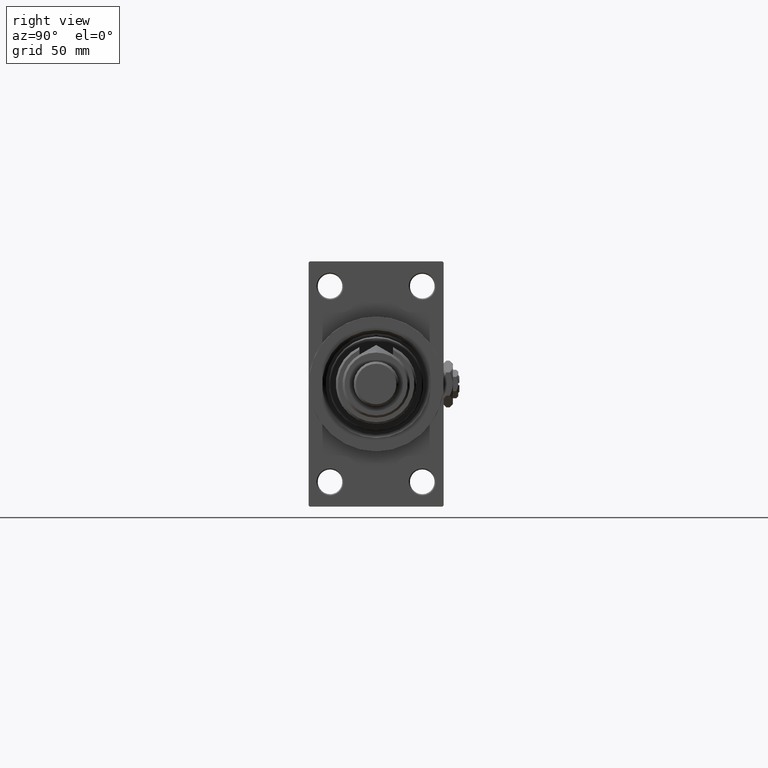
[diagram: clean part render]
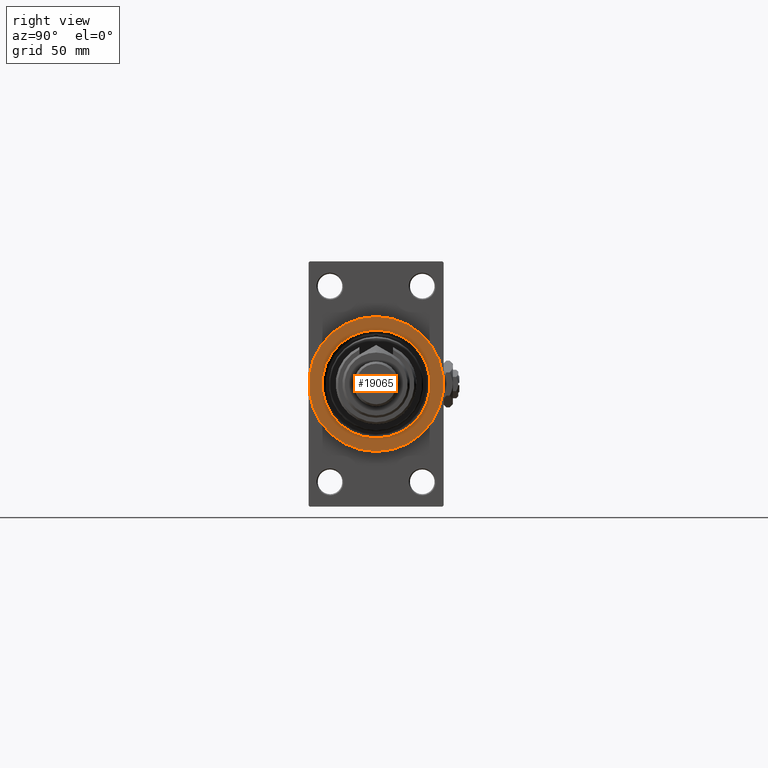
[diagram: same view with one face highlighted and labeled with its STEP entity id]
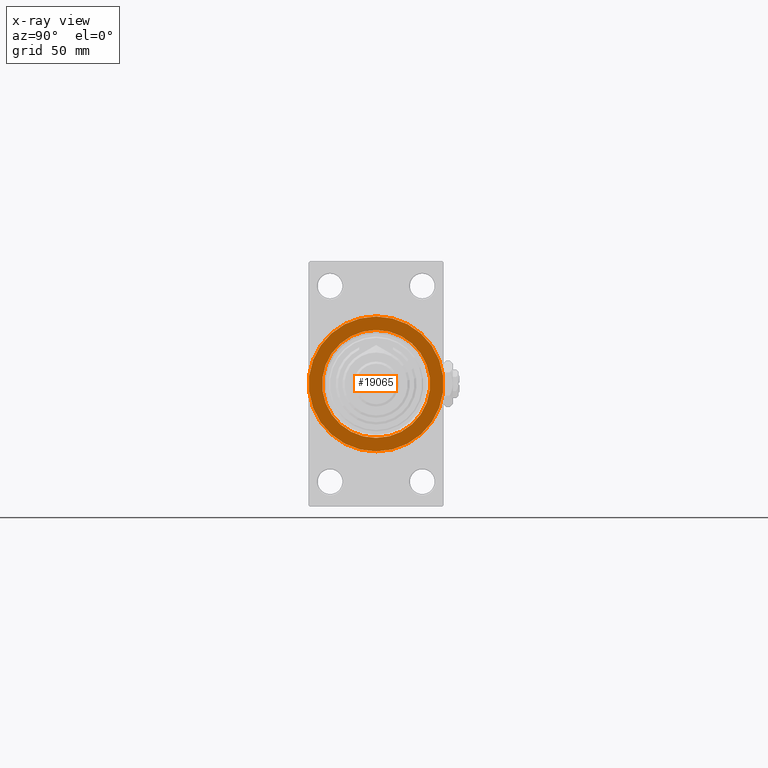
[diagram: x-ray of the same camera — body ghosted, the highlighted face saturated]
A machine part, right view. The second image highlights one B-rep face of the part: STEP entity #19065.
The next image is the same camera in x-ray: the body ghosted, the highlighted face saturated — about 0% of this face is hidden behind the body in this view.
In plain terms, the highlighted planar face has unit normal (1, 0, 0).
Its self-contained STEP definition (entity closure, byte-faithful):
#398 = CARTESIAN_POINT ( 'NONE',  ( 178.0000000000000000, 3.673940397442059178E-15, -30.00000000000000000 ) ) ;
#2253 = AXIS2_PLACEMENT_3D ( 'NONE', #32514, #25098, #40208 ) ;
#2577 = ORIENTED_EDGE ( 'NONE', *, *, #8403, .T. ) ;
#2735 = ORIENTED_EDGE ( 'NONE', *, *, #32659, .T. ) ;
#5507 = FACE_OUTER_BOUND ( 'NONE', #7262, .T. ) ;
#6458 = CARTESIAN_POINT ( 'NONE',  ( 178.0000000000000000, 0.000000000000000000, -24.00000000000005329 ) ) ;
#7206 = CARTESIAN_POINT ( 'NONE',  ( 178.0000000000000000, 0.000000000000000000, 0.000000000000000000 ) ) ;
#7262 = EDGE_LOOP ( 'NONE', ( #2735, #21966 ) ) ;
#7820 = VERTEX_POINT ( 'NONE', #17083 ) ;
#8268 = CIRCLE ( 'NONE', #36185, 30.00000000000000000 ) ;
#8403 = EDGE_CURVE ( 'NONE', #17482, #7820, #16677, .T. ) ;
#8691 = DIRECTION ( 'NONE',  ( -1.000000000000000000, -0.000000000000000000, -0.000000000000000000 ) ) ;
#9593 = VERTEX_POINT ( 'NONE', #398 ) ;
#12738 = DIRECTION ( 'NONE',  ( 1.000000000000000000, 0.000000000000000000, 0.000000000000000000 ) ) ;
#13364 = EDGE_CURVE ( 'NONE', #9593, #46367, #8268, .T. ) ;
#16677 = CIRCLE ( 'NONE', #2253, 24.00000000000005329 ) ;
#17083 = CARTESIAN_POINT ( 'NONE',  ( 178.0000000000000000, 2.939152317953654205E-15, 24.00000000000005329 ) ) ;
#17482 = VERTEX_POINT ( 'NONE', #6458 ) ;
#18613 = DIRECTION ( 'NONE',  ( 1.000000000000000000, 0.000000000000000000, 0.000000000000000000 ) ) ;
#19010 = EDGE_CURVE ( 'NONE', #7820, #17482, #38101, .T. ) ;
#19065 = ADVANCED_FACE ( 'NONE', ( #28561, #5507 ), #21670, .T. ) ;
#21670 = PLANE ( 'NONE',  #28779 ) ;
#21966 = ORIENTED_EDGE ( 'NONE', *, *, #13364, .T. ) ;
#23353 = DIRECTION ( 'NONE',  ( 0.000000000000000000, 0.000000000000000000, -1.000000000000000000 ) ) ;
#25098 = DIRECTION ( 'NONE',  ( -1.000000000000000000, -0.000000000000000000, -0.000000000000000000 ) ) ;
#26552 = AXIS2_PLACEMENT_3D ( 'NONE', #32867, #12738, #28894 ) ;
#28154 = ORIENTED_EDGE ( 'NONE', *, *, #19010, .T. ) ;
#28561 = FACE_BOUND ( 'NONE', #46490, .T. ) ;
#28779 = AXIS2_PLACEMENT_3D ( 'NONE', #41002, #37298, #28815 ) ;
#28815 = DIRECTION ( 'NONE',  ( 0.000000000000000000, 0.000000000000000000, -1.000000000000000000 ) ) ;
#28894 = DIRECTION ( 'NONE',  ( 0.000000000000000000, 0.000000000000000000, -1.000000000000000000 ) ) ;
#32514 = CARTESIAN_POINT ( 'NONE',  ( 178.0000000000000000, 0.000000000000000000, 0.000000000000000000 ) ) ;
#32659 = EDGE_CURVE ( 'NONE', #46367, #9593, #49399, .T. ) ;
#32867 = CARTESIAN_POINT ( 'NONE',  ( 178.0000000000000000, 0.000000000000000000, 0.000000000000000000 ) ) ;
#36185 = AXIS2_PLACEMENT_3D ( 'NONE', #7206, #18613, #23353 ) ;
#37298 = DIRECTION ( 'NONE',  ( 1.000000000000000000, 0.000000000000000000, 0.000000000000000000 ) ) ;
#38101 = CIRCLE ( 'NONE', #49111, 24.00000000000005329 ) ;
#40208 = DIRECTION ( 'NONE',  ( 0.000000000000000000, 0.000000000000000000, -1.000000000000000000 ) ) ;
#41002 = CARTESIAN_POINT ( 'NONE',  ( 178.0000000000000000, 0.000000000000000000, 0.000000000000000000 ) ) ;
#41532 = DIRECTION ( 'NONE',  ( 0.000000000000000000, 0.000000000000000000, -1.000000000000000000 ) ) ;
#44745 = CARTESIAN_POINT ( 'NONE',  ( 178.0000000000000000, 0.000000000000000000, 0.000000000000000000 ) ) ;
#46367 = VERTEX_POINT ( 'NONE', #47049 ) ;
#46490 = EDGE_LOOP ( 'NONE', ( #2577, #28154 ) ) ;
#47049 = CARTESIAN_POINT ( 'NONE',  ( 178.0000000000000000, 0.000000000000000000, 30.00000000000000000 ) ) ;
#49111 = AXIS2_PLACEMENT_3D ( 'NONE', #44745, #8691, #41532 ) ;
#49399 = CIRCLE ( 'NONE', #26552, 30.00000000000000000 ) ;